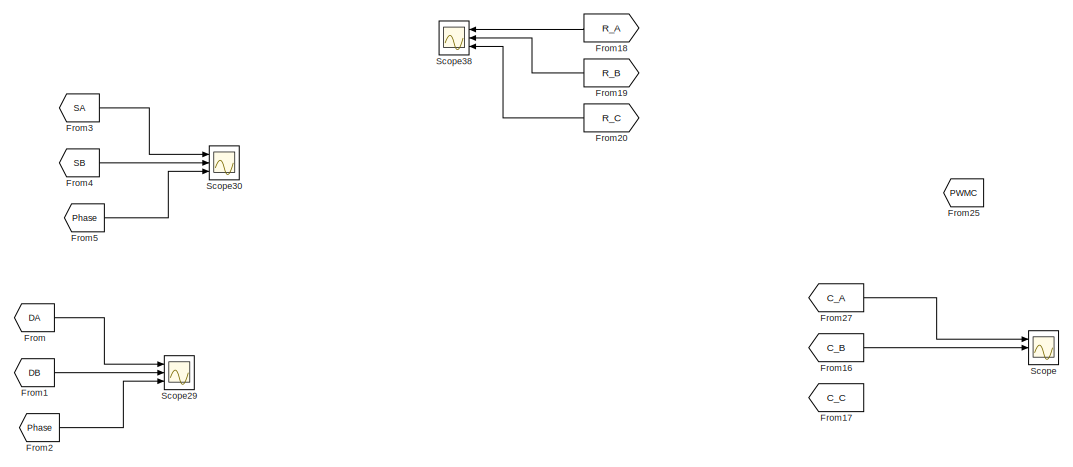
[diagram: root canvas - part 1/6, top left region]
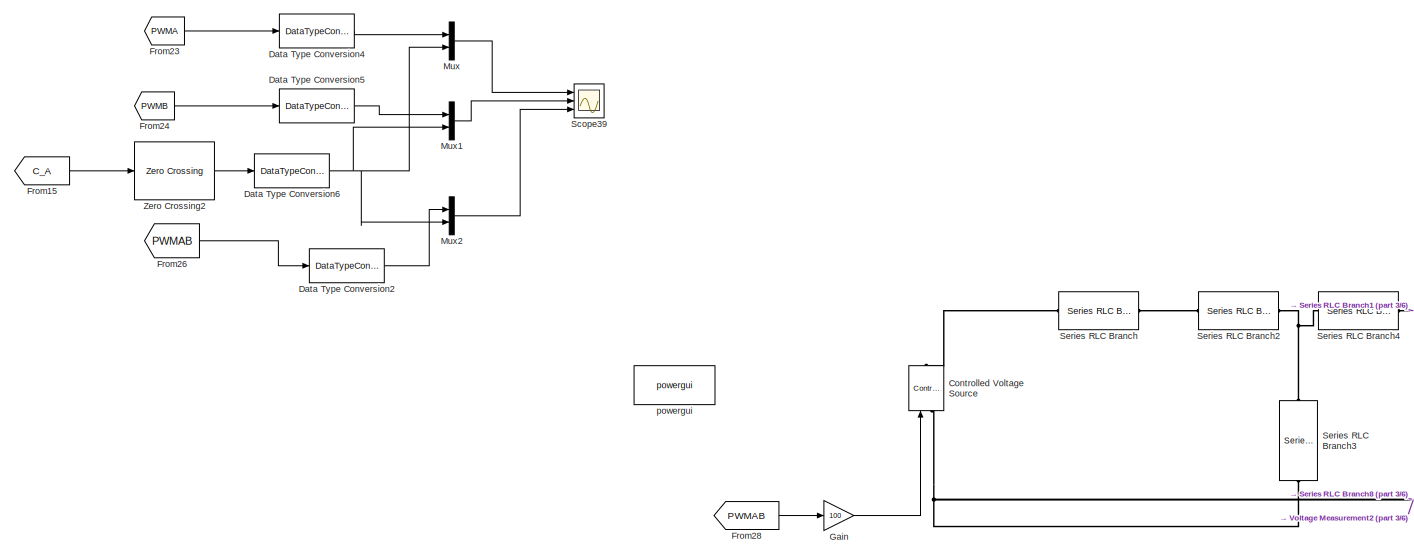
[diagram: root canvas - part 2/6, central region]
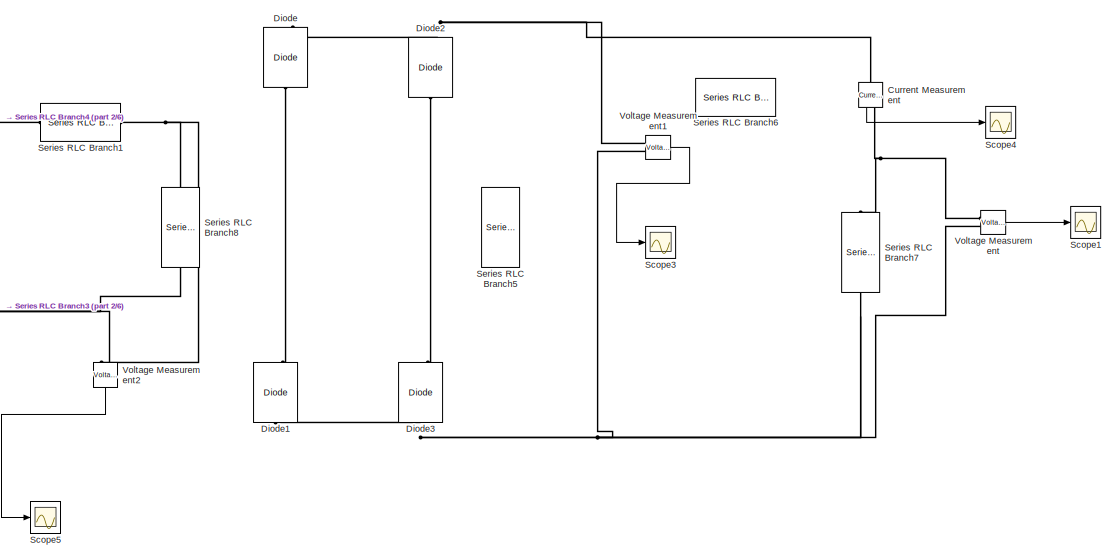
[diagram: root canvas - part 3/6, middle right region]
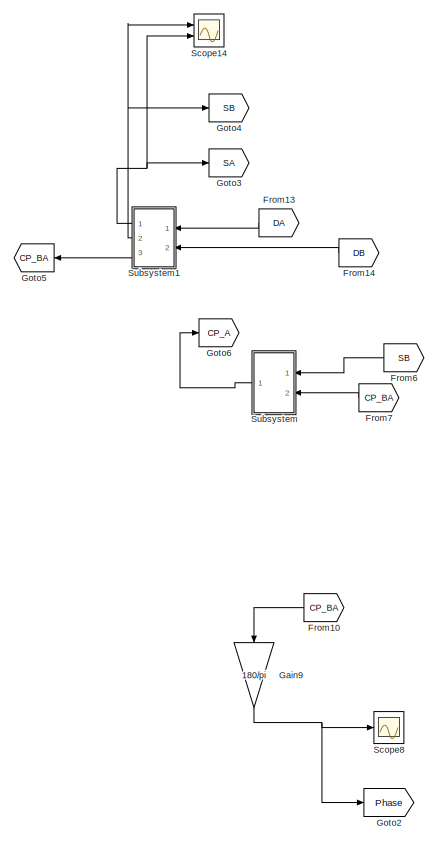
[diagram: root canvas - part 4/6, middle left region]
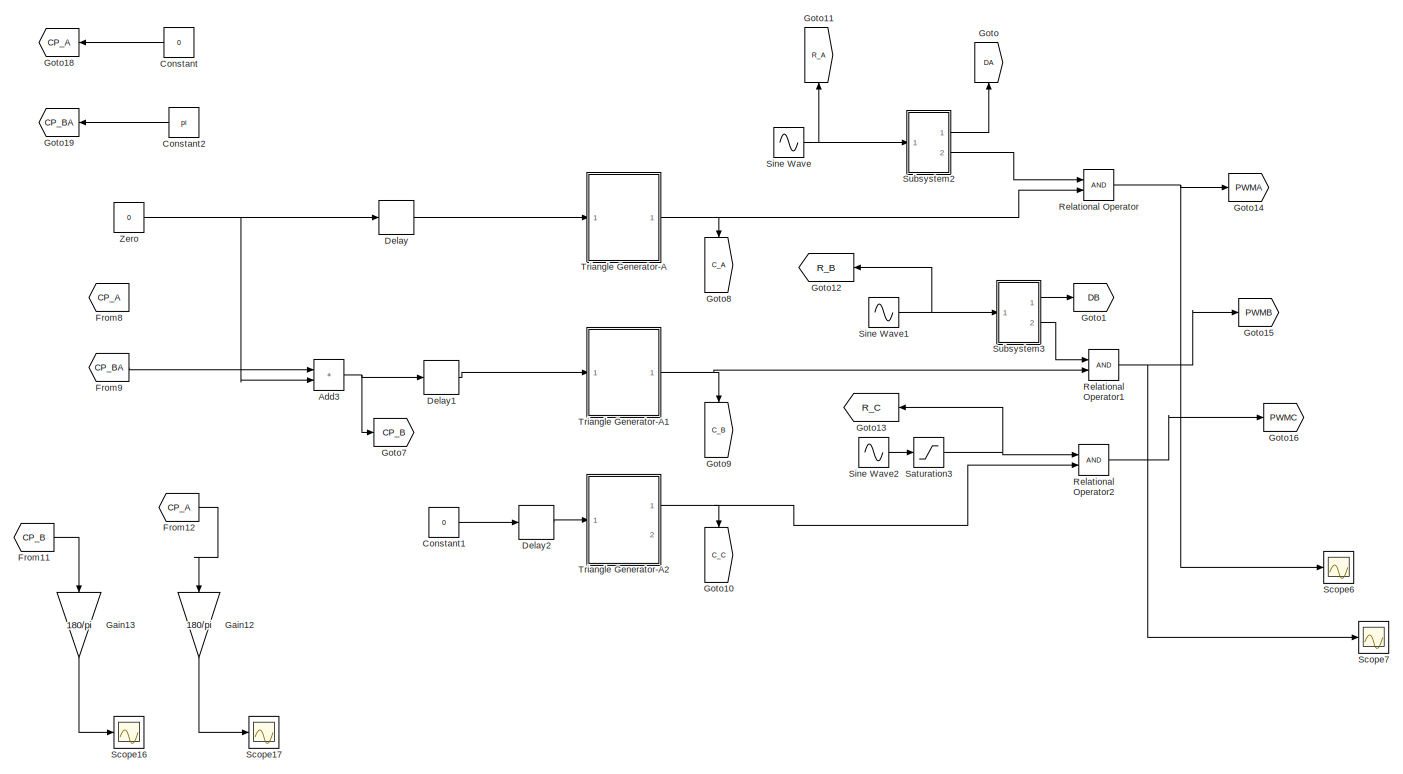
[diagram: root canvas - part 5/6, bottom left region]
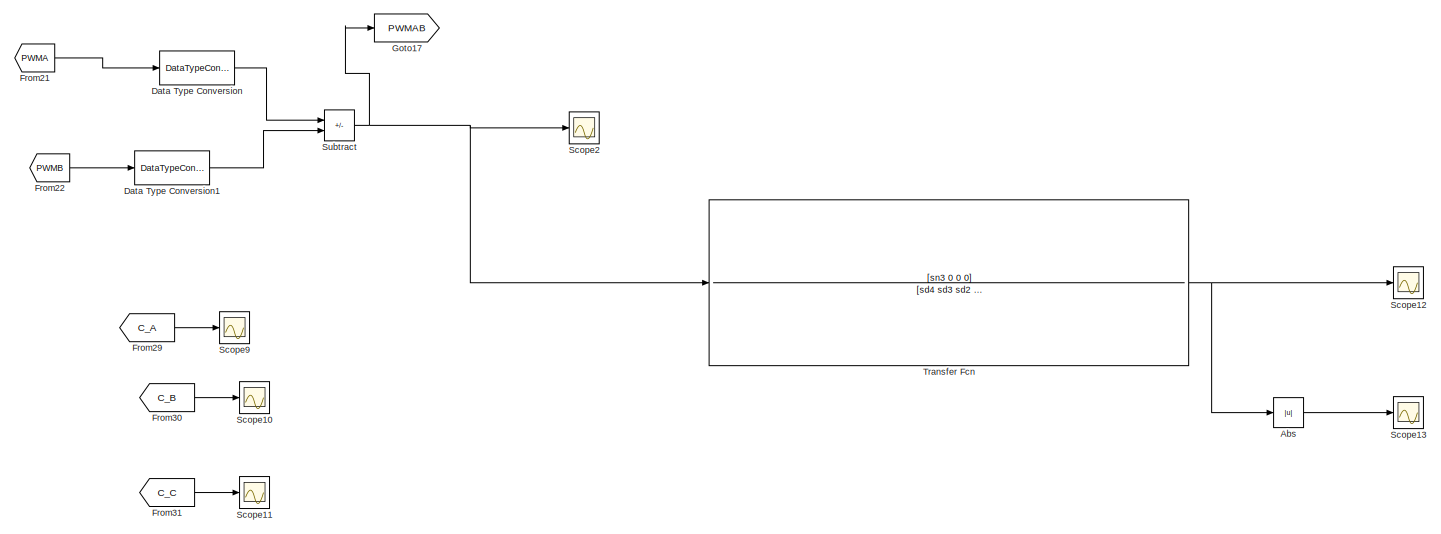
[diagram: root canvas - part 6/6, bottom center region]
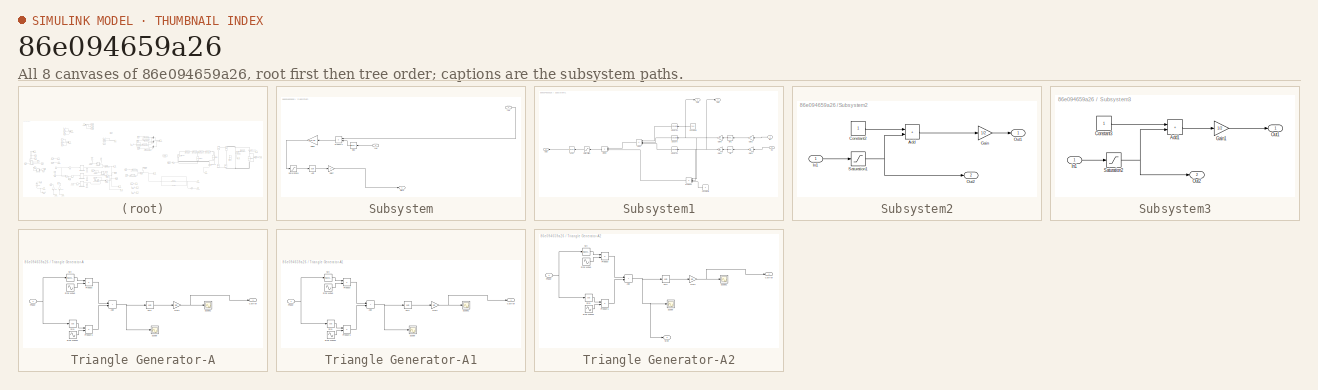
[diagram: thumbnail index - all 8 canvases of the model, root first then tree order]
MODEL slx_86e094659a26
KIND model
CONFIG AbsTol = auto
CONFIG EnableMultiTasking = off
CONFIG FixedStep = 1e-7
CONFIG InitFcn = fsw=50e3;\nma=0.85;\nffund=100;\n\nL1=63e-6;\nL2=50e-6;\nM=18e-6;\nC1=12.2e-9;\nC2=14.5e-9;\nR=20;\n\nsn3=C1*C2*M*R;\nsd4=C1*C2*L1*L2+C1*C2*L1*M+C1*C2*L2*M;\nsd3= C1*C2*L1*R+ C1*C2*M*R;\nsd2= C1*L1+C2*L2+C1*M+C2*M;\nsd1=C2*R;\nsd0=1;\n
CONFIG MaxStep = 1e-7
CONFIG MinStep = auto
CONFIG RelTol = 1e-6
CONFIG SampleTimeConstraint = Unconstrained
CONFIG SolverName = FixedStepAuto
CONFIG StartTime = 0.0
CONFIG StopTime = 0.05
BLOCK [Abs] Abs
  SaturateOnIntegerOverflow = off
BLOCK [Sum] Add3
  IconShape = rectangular
  Ports = [2, 1]
BLOCK [Constant] Constant
  Commented = on
  NameLocation = top
  Value = 0
BLOCK [Constant] Constant1
  Value = 0
BLOCK [Constant] Constant2
  Commented = on
  NameLocation = top
  Value = pi
BLOCK [Reference] Controlled Voltage Source  REF=spsControlledVoltageSourceLib/Controlled Voltage Source
  Ports = [1, 0, 0, 0, 0, 1, 1]
  SourceBlock = spsControlledVoltageSourceLib/Controlled Voltage Source
  SourceProductBaseCode = PS
  SourceType = Controlled Voltage Source
BLOCK [Reference] Current Measurement  REF=spsCurrentMeasurementLib/Current Measurement
  NameLocation = left
  Ports = [0, 1, 0, 0, 0, 1, 1]
  SourceBlock = spsCurrentMeasurementLib/Current Measurement
  SourceProductBaseCode = PS
  SourceType = Current Measurement
  UserDataPersistent = on
BLOCK [DataTypeConversion] Data Type Conversion
  RndMeth = Floor
  SaturateOnIntegerOverflow = off
BLOCK [DataTypeConversion] Data Type Conversion1
  RndMeth = Floor
  SaturateOnIntegerOverflow = off
BLOCK [DataTypeConversion] Data Type Conversion2
  RndMeth = Floor
  SaturateOnIntegerOverflow = off
BLOCK [DataTypeConversion] Data Type Conversion4
  RndMeth = Floor
  SaturateOnIntegerOverflow = off
BLOCK [DataTypeConversion] Data Type Conversion5
  RndMeth = Floor
  SaturateOnIntegerOverflow = off
BLOCK [DataTypeConversion] Data Type Conversion6
  RndMeth = Floor
  SaturateOnIntegerOverflow = off
BLOCK [Delay] Delay
  DelayLength = 1
  InputPortMap = u0
  Ports = [1, 1]
BLOCK [Delay] Delay1
  DelayLength = 1
  InputPortMap = u0
  Ports = [1, 1]
BLOCK [Delay] Delay2
  DelayLength = 1
  InputPortMap = u0
  Ports = [1, 1]
BLOCK [Reference] Diode  REF=spsDiodeLib/Diode
  NameLocation = right
  Ports = [0, 1, 0, 0, 0, 1, 1]
  SourceBlock = spsDiodeLib/Diode
  SourceProductBaseCode = PS
  SourceType = Diode
BLOCK [Reference] Diode1  REF=spsDiodeLib/Diode
  NameLocation = right
  Ports = [0, 1, 0, 0, 0, 1, 1]
  SourceBlock = spsDiodeLib/Diode
  SourceProductBaseCode = PS
  SourceType = Diode
BLOCK [Reference] Diode2  REF=spsDiodeLib/Diode
  NameLocation = right
  Ports = [0, 1, 0, 0, 0, 1, 1]
  SourceBlock = spsDiodeLib/Diode
  SourceProductBaseCode = PS
  SourceType = Diode
BLOCK [Reference] Diode3  REF=spsDiodeLib/Diode
  NameLocation = right
  Ports = [0, 1, 0, 0, 0, 1, 1]
  SourceBlock = spsDiodeLib/Diode
  SourceProductBaseCode = PS
  SourceType = Diode
BLOCK [From] From
  GotoTag = DA
BLOCK [From] From1
  GotoTag = DB
BLOCK [From] From10
  GotoTag = CP_BA
  NameLocation = top
BLOCK [From] From11
  GotoTag = CP_B
BLOCK [From] From12
  GotoTag = CP_A
BLOCK [From] From13
  GotoTag = DA
  NameLocation = top
BLOCK [From] From14
  GotoTag = DB
  NameLocation = top
BLOCK [From] From15
  GotoTag = C_A
BLOCK [From] From16
  GotoTag = C_B
BLOCK [From] From17
  GotoTag = C_C
BLOCK [From] From18
  GotoTag = R_A
  NameLocation = top
BLOCK [From] From19
  GotoTag = R_B
BLOCK [From] From2
  GotoTag = Phase
BLOCK [From] From20
  GotoTag = R_C
BLOCK [From] From21
  GotoTag = PWMA
BLOCK [From] From22
  GotoTag = PWMB
BLOCK [From] From23
  GotoTag = PWMA
BLOCK [From] From24
  GotoTag = PWMB
BLOCK [From] From25
  GotoTag = PWMC
BLOCK [From] From26
  GotoTag = PWMAB
BLOCK [From] From27
  GotoTag = C_A
BLOCK [From] From28
  GotoTag = PWMAB
BLOCK [From] From29
  GotoTag = C_A
BLOCK [From] From3
  GotoTag = SA
BLOCK [From] From30
  GotoTag = C_B
BLOCK [From] From31
  GotoTag = C_C
BLOCK [From] From4
  GotoTag = SB
BLOCK [From] From5
  GotoTag = Phase
BLOCK [From] From6
  GotoTag = SB
  NameLocation = top
BLOCK [From] From7
  GotoTag = CP_BA
  NameLocation = top
BLOCK [From] From8
  GotoTag = CP_A
BLOCK [From] From9
  GotoTag = CP_BA
BLOCK [Gain] Gain
  Gain = 100
BLOCK [Gain] Gain12
  Gain = 180/pi
  NameLocation = left
BLOCK [Gain] Gain13
  Gain = 180/pi
  NameLocation = left
BLOCK [Gain] Gain9
  Gain = 180/pi
  NameLocation = left
BLOCK [Goto] Goto
  GotoTag = DA
  NameLocation = right
BLOCK [Goto] Goto1
  GotoTag = DB
BLOCK [Goto] Goto10
  GotoTag = C_C
  NameLocation = left
BLOCK [Goto] Goto11
  GotoTag = R_A
  NameLocation = right
BLOCK [Goto] Goto12
  GotoTag = R_B
  NameLocation = top
BLOCK [Goto] Goto13
  GotoTag = R_C
  NameLocation = top
BLOCK [Goto] Goto14
  GotoTag = PWMA
BLOCK [Goto] Goto15
  GotoTag = PWMB
BLOCK [Goto] Goto16
  GotoTag = PWMC
BLOCK [Goto] Goto17
  GotoTag = PWMAB
BLOCK [Goto] Goto18
  Commented = on
  GotoTag = CP_A
  NameLocation = top
BLOCK [Goto] Goto19
  Commented = on
  GotoTag = CP_BA
  NameLocation = top
BLOCK [Goto] Goto2
  GotoTag = Phase
BLOCK [Goto] Goto3
  GotoTag = SA
BLOCK [Goto] Goto4
  GotoTag = SB
BLOCK [Goto] Goto5
  GotoTag = CP_BA
  NameLocation = top
BLOCK [Goto] Goto6
  GotoTag = CP_A
BLOCK [Goto] Goto7
  GotoTag = CP_B
BLOCK [Goto] Goto8
  GotoTag = C_A
  NameLocation = left
BLOCK [Goto] Goto9
  GotoTag = C_B
  NameLocation = left
BLOCK [Mux] Mux
  DisplayOption = bar
  Inputs = 2
  Ports = [2, 1]
BLOCK [Mux] Mux1
  DisplayOption = bar
  Inputs = 2
  Ports = [2, 1]
BLOCK [Mux] Mux2
  DisplayOption = bar
  Inputs = 2
  Ports = [2, 1]
BLOCK [RelationalOperator] Relational Operator
  InputSameDT = off
  OutDataTypeStr = boolean
  Ports = [2, 1]
  RndMeth = Simplest
BLOCK [RelationalOperator] Relational Operator1
  InputSameDT = off
  OutDataTypeStr = boolean
  Ports = [2, 1]
  RndMeth = Simplest
BLOCK [RelationalOperator] Relational Operator2
  InputSameDT = off
  OutDataTypeStr = boolean
  Ports = [2, 1]
  RndMeth = Simplest
BLOCK [Saturate] Saturation3
  LowerLimit = -1
  UpperLimit = 1
BLOCK [Scope] Scope
  Floating = off
  NumInputPorts = 3
  Ports = [3]
  ScopeSpecificationString = Simulink.scopes.TimeScopeBlockCfg('CurrentConfiguration', extmgr.ConfigurationSet(extmgr.Configuration('Core','General UI',true),extmgr.Configuration('Core','Source UI',true),extmgr.Configuration('Sources','WiredSimulink',true,'DataLoggingVariableName','ScopeData1'),extmgr.Configuration('Visuals','Time Domain',true,'SerializedDisplays',{struct('MinYLimReal','-1.25','MaxYLimReal','1.20187','YLabelR...<+1474ch>
BLOCK [Scope] Scope1
  Floating = off
  NumInputPorts = 1
  Ports = [1]
  ScopeSpecificationString = Simulink.scopes.TimeScopeBlockCfg('CurrentConfiguration', extmgr.ConfigurationSet(extmgr.Configuration('Core','General UI',true),extmgr.Configuration('Core','Source UI',true),extmgr.Configuration('Sources','WiredSimulink',true,'DataLoggingVariableName','ScopeData2'),extmgr.Configuration('Visuals','Time Domain',true,'SerializedDisplays',{struct('MinYLimReal','-5.70914','MaxYLimReal','93.73437','YLa...<+1453ch>
BLOCK [Scope] Scope10
  Floating = off
  NumInputPorts = 1
  Ports = [1]
  ScopeSpecificationString = Simulink.scopes.TimeScopeBlockCfg('CurrentConfiguration', extmgr.ConfigurationSet(extmgr.Configuration('Core','General UI',true),extmgr.Configuration('Core','Source UI',true),extmgr.Configuration('Sources','WiredSimulink',true,'DataLoggingVariableName','CB','DataLogging',true,'DataLoggingSaveFormat','StructureWithTime'),extmgr.Configuration('Visuals','Time Domain',true,'SerializedDisplays',{struct...<+1488ch>
BLOCK [Scope] Scope11
  Floating = off
  NumInputPorts = 1
  Ports = [1]
  ScopeSpecificationString = Simulink.scopes.TimeScopeBlockCfg('CurrentConfiguration', extmgr.ConfigurationSet(extmgr.Configuration('Core','General UI',true),extmgr.Configuration('Core','Source UI',true),extmgr.Configuration('Sources','WiredSimulink',true,'DataLoggingVariableName','CC','DataLogging',true,'DataLoggingSaveFormat','StructureWithTime'),extmgr.Configuration('Visuals','Time Domain',true,'SerializedDisplays',{struct...<+1490ch>
BLOCK [Scope] Scope12
  Floating = off
  NumInputPorts = 1
  Ports = [1]
  ScopeSpecificationString = Simulink.scopes.TimeScopeBlockCfg('CurrentConfiguration', extmgr.ConfigurationSet(extmgr.Configuration('Core','General UI',true),extmgr.Configuration('Core','Source UI',true),extmgr.Configuration('Sources','WiredSimulink',true,'DataLoggingVariableName','ScopeData5','DataLogging',true,'DataLoggingSaveFormat','StructureWithTime'),extmgr.Configuration('Visuals','Time Domain',true,'SerializedDisplays'...<+1505ch>
BLOCK [Scope] Scope13
  Floating = off
  NumInputPorts = 1
  Ports = [1]
  ScopeSpecificationString = Simulink.scopes.TimeScopeBlockCfg('CurrentConfiguration', extmgr.ConfigurationSet(extmgr.Configuration('Core','General UI',true),extmgr.Configuration('Core','Source UI',true),extmgr.Configuration('Sources','WiredSimulink',true,'DataLoggingVariableName','Vrx_rec','DataLogging',true,'DataLoggingSaveFormat','StructureWithTime'),extmgr.Configuration('Visuals','Time Domain',true,'SerializedDisplays',{s...<+1493ch>
BLOCK [Scope] Scope14
  Floating = off
  NumInputPorts = 2
  Ports = [2]
  ScopeSpecificationString = Simulink.scopes.TimeScopeBlockCfg('CurrentConfiguration', extmgr.ConfigurationSet(extmgr.Configuration('Core','General UI',true),extmgr.Configuration('Core','Source UI',true),extmgr.Configuration('Sources','WiredSimulink',true,'DataLoggingVariableName','ScopeData1'),extmgr.Configuration('Visuals','Time Domain',true,'SerializedDisplays',{struct('MinYLimReal','0.08762','MaxYLimReal','0.69762','YLabe...<+1415ch>
BLOCK [Scope] Scope16
  Floating = off
  NumInputPorts = 1
  Ports = [1]
  ScopeSpecificationString = Simulink.scopes.TimeScopeBlockCfg('CurrentConfiguration', extmgr.ConfigurationSet(extmgr.Configuration('Core','General UI',true),extmgr.Configuration('Core','Source UI',true),extmgr.Configuration('Sources','WiredSimulink',true,'DataLoggingVariableName','ScopeData12'),extmgr.Configuration('Visuals','Time Domain',true,'SerializedDisplays',{struct('MinYLimReal','-19.4586','MaxYLimReal','175.12737','Y...<+1449ch>
BLOCK [Scope] Scope17
  Floating = off
  NumInputPorts = 1
  Ports = [1]
  ScopeSpecificationString = Simulink.scopes.TimeScopeBlockCfg('CurrentConfiguration', extmgr.ConfigurationSet(extmgr.Configuration('Core','General UI',true),extmgr.Configuration('Core','Source UI',true),extmgr.Configuration('Sources','WiredSimulink',true,'DataLoggingVariableName','ScopeData13'),extmgr.Configuration('Visuals','Time Domain',true,'SerializedDisplays',{struct('MinYLimReal','-11.24999','MaxYLimReal','101.24991','...<+1453ch>
BLOCK [Scope] Scope2
  Floating = off
  NumInputPorts = 1
  Ports = [1]
  ScopeSpecificationString = Simulink.scopes.TimeScopeBlockCfg('CurrentConfiguration', extmgr.ConfigurationSet(extmgr.Configuration('Core','General UI',true),extmgr.Configuration('Core','Source UI',true),extmgr.Configuration('Sources','WiredSimulink',true,'DataLoggingVariableName','VAB','DataLogging',true,'DataLoggingSaveFormat','StructureWithTime'),extmgr.Configuration('Visuals','Time Domain',true,'SerializedDisplays',{struc...<+1476ch>
BLOCK [Scope] Scope29
  Floating = off
  NumInputPorts = 3
  Ports = [3]
  ScopeSpecificationString = Simulink.scopes.TimeScopeBlockCfg('CurrentConfiguration', extmgr.ConfigurationSet(extmgr.Configuration('Core','General UI',true),extmgr.Configuration('Core','Source UI',true),extmgr.Configuration('Sources','WiredSimulink',true,'DataLoggingVariableName','ScopeData2'),extmgr.Configuration('Visuals','Time Domain',true,'SerializedDisplays',{struct('MinYLimReal','0.00000','MaxYLimReal','1.00000','YLabe...<+2802ch>
BLOCK [Scope] Scope3
  Floating = off
  NumInputPorts = 1
  Ports = [1]
  ScopeSpecificationString = Simulink.scopes.TimeScopeBlockCfg('CurrentConfiguration', extmgr.ConfigurationSet(extmgr.Configuration('Core','General UI',true),extmgr.Configuration('Core','Source UI',true),extmgr.Configuration('Sources','WiredSimulink',true,'DataLoggingVariableName','ScopeData3'),extmgr.Configuration('Visuals','Time Domain',true,'SerializedDisplays',{struct('MinYLimReal','-1.00000','MaxYLimReal','1.00000','YLab...<+1435ch>
BLOCK [Scope] Scope30
  Floating = off
  NumInputPorts = 3
  Ports = [3]
  ScopeSpecificationString = Simulink.scopes.TimeScopeBlockCfg('CurrentConfiguration', extmgr.ConfigurationSet(extmgr.Configuration('Core','General UI',true),extmgr.Configuration('Core','Source UI',true),extmgr.Configuration('Sources','WiredSimulink',true,'DataLoggingVariableName','ScopeData3'),extmgr.Configuration('Visuals','Time Domain',true,'SerializedDisplays',{struct('MinYLimReal','0.14174','MaxYLimReal','0.69161','YLabe...<+2788ch>
BLOCK [Scope] Scope38
  Floating = off
  NameLocation = top
  NumInputPorts = 3
  Ports = [3]
  ScopeSpecificationString = Simulink.scopes.TimeScopeBlockCfg('CurrentConfiguration', extmgr.ConfigurationSet(extmgr.Configuration('Core','General UI',true),extmgr.Configuration('Core','Source UI',true),extmgr.Configuration('Sources','WiredSimulink',true,'DataLoggingVariableName','ScopeData11'),extmgr.Configuration('Visuals','Time Domain',true,'SerializedDisplays',{struct('MinYLimReal','-1.125','MaxYLimReal','1.125','YLabelR...<+2780ch>
BLOCK [Scope] Scope39
  Floating = off
  NumInputPorts = 3
  Ports = [3]
  ScopeSpecificationString = Simulink.scopes.TimeScopeBlockCfg('CurrentConfiguration', extmgr.ConfigurationSet(extmgr.Configuration('Core','General UI',true),extmgr.Configuration('Core','Source UI',true),extmgr.Configuration('Sources','WiredSimulink',true,'DataLoggingVariableName','ScopeData12'),extmgr.Configuration('Visuals','Time Domain',true,'SerializedDisplays',{struct('MinYLimReal','-0.125','MaxYLimReal','1.125','YLabelR...<+2909ch>
BLOCK [Scope] Scope4
  Floating = off
  NumInputPorts = 1
  Ports = [1]
  ScopeSpecificationString = Simulink.scopes.TimeScopeBlockCfg('CurrentConfiguration', extmgr.ConfigurationSet(extmgr.Configuration('Core','General UI',true),extmgr.Configuration('Core','Source UI',true),extmgr.Configuration('Sources','WiredSimulink',true,'DataLoggingVariableName','ScopeData4'),extmgr.Configuration('Visuals','Time Domain',true,'SerializedDisplays',{struct('MinYLimReal','1.40996','MaxYLimReal','1.43345','YLabe...<+1449ch>
BLOCK [Scope] Scope5
  Floating = off
  NumInputPorts = 1
  Ports = [1]
  ScopeSpecificationString = Simulink.scopes.TimeScopeBlockCfg('CurrentConfiguration', extmgr.ConfigurationSet(extmgr.Configuration('Core','General UI',true),extmgr.Configuration('Core','Source UI',true),extmgr.Configuration('Sources','WiredSimulink',true,'DataLoggingVariableName','VRX','DataLogging',true,'DataLoggingSaveFormat','StructureWithTime'),extmgr.Configuration('Visuals','Time Domain',true,'SerializedDisplays',{struc...<+1521ch>
BLOCK [Scope] Scope6
  Floating = off
  NumInputPorts = 1
  Ports = [1]
  ScopeSpecificationString = Simulink.scopes.TimeScopeBlockCfg('CurrentConfiguration', extmgr.ConfigurationSet(extmgr.Configuration('Core','General UI',true),extmgr.Configuration('Core','Source UI',true),extmgr.Configuration('Sources','WiredSimulink',true,'DataLoggingVariableName','VA','DataLogging',true,'DataLoggingSaveFormat','StructureWithTime'),extmgr.Configuration('Visuals','Time Domain',true,'SerializedDisplays',{struct...<+1486ch>
BLOCK [Scope] Scope7
  Floating = off
  NumInputPorts = 1
  Ports = [1]
  ScopeSpecificationString = Simulink.scopes.TimeScopeBlockCfg('CurrentConfiguration', extmgr.ConfigurationSet(extmgr.Configuration('Core','General UI',true),extmgr.Configuration('Core','Source UI',true),extmgr.Configuration('Sources','WiredSimulink',true,'DataLoggingVariableName','VB','DataLogging',true,'DataLoggingSaveFormat','StructureWithTime'),extmgr.Configuration('Visuals','Time Domain',true,'SerializedDisplays',{struct...<+1487ch>
BLOCK [Scope] Scope8
  Floating = off
  NumInputPorts = 1
  Ports = [1]
  ScopeSpecificationString = Simulink.scopes.TimeScopeBlockCfg('CurrentConfiguration', extmgr.ConfigurationSet(extmgr.Configuration('Core','General UI',true),extmgr.Configuration('Core','Source UI',true),extmgr.Configuration('Sources','WiredSimulink',true,'DataLoggingVariableName','ScopeData2'),extmgr.Configuration('Visuals','Time Domain',true,'SerializedDisplays',{struct('MinYLimReal','25.49348','MaxYLimReal','104.14144','YL...<+1450ch>
BLOCK [Scope] Scope9
  Floating = off
  NumInputPorts = 1
  Ports = [1]
  ScopeSpecificationString = Simulink.scopes.TimeScopeBlockCfg('CurrentConfiguration', extmgr.ConfigurationSet(extmgr.Configuration('Core','General UI',true),extmgr.Configuration('Core','Source UI',true),extmgr.Configuration('Sources','WiredSimulink',true,'DataLoggingVariableName','CA','DataLogging',true,'DataLoggingSaveFormat','StructureWithTime'),extmgr.Configuration('Visuals','Time Domain',true,'SerializedDisplays',{struct...<+1503ch>
BLOCK [Reference] Series RLC Branch  REF=spsSeriesRLCBranchLib/Series RLC Branch
  Ports = [0, 0, 0, 0, 0, 1, 1]
  SourceBlock = spsSeriesRLCBranchLib/Series RLC Branch
  SourceProductBaseCode = PS
  SourceType = Series RLC Branch
BLOCK [Reference] Series RLC Branch1  REF=spsSeriesRLCBranchLib/Series RLC Branch
  Ports = [0, 0, 0, 0, 0, 1, 1]
  SourceBlock = spsSeriesRLCBranchLib/Series RLC Branch
  SourceProductBaseCode = PS
  SourceType = Series RLC Branch
BLOCK [Reference] Series RLC Branch2  REF=spsSeriesRLCBranchLib/Series RLC Branch
  Ports = [0, 0, 0, 0, 0, 1, 1]
  SourceBlock = spsSeriesRLCBranchLib/Series RLC Branch
  SourceProductBaseCode = PS
  SourceType = Series RLC Branch
BLOCK [Reference] Series RLC Branch3  REF=spsSeriesRLCBranchLib/Series RLC Branch
  NameLocation = left
  Ports = [0, 0, 0, 0, 0, 1, 1]
  SourceBlock = spsSeriesRLCBranchLib/Series RLC Branch
  SourceProductBaseCode = PS
  SourceType = Series RLC Branch
BLOCK [Reference] Series RLC Branch4  REF=spsSeriesRLCBranchLib/Series RLC Branch
  Ports = [0, 0, 0, 0, 0, 1, 1]
  SourceBlock = spsSeriesRLCBranchLib/Series RLC Branch
  SourceProductBaseCode = PS
  SourceType = Series RLC Branch
BLOCK [Reference] Series RLC Branch5  REF=spsSeriesRLCBranchLib/Series RLC Branch
  NameLocation = left
  Ports = [0, 0, 0, 0, 0, 1, 1]
  SourceBlock = spsSeriesRLCBranchLib/Series RLC Branch
  SourceProductBaseCode = PS
  SourceType = Series RLC Branch
BLOCK [Reference] Series RLC Branch6  REF=spsSeriesRLCBranchLib/Series RLC Branch
  NameLocation = top
  Ports = [0, 0, 0, 0, 0, 1, 1]
  SourceBlock = spsSeriesRLCBranchLib/Series RLC Branch
  SourceProductBaseCode = PS
  SourceType = Series RLC Branch
BLOCK [Reference] Series RLC Branch7  REF=spsSeriesRLCBranchLib/Series RLC Branch
  NameLocation = left
  Ports = [0, 0, 0, 0, 0, 1, 1]
  SourceBlock = spsSeriesRLCBranchLib/Series RLC Branch
  SourceProductBaseCode = PS
  SourceType = Series RLC Branch
BLOCK [Reference] Series RLC Branch8  REF=spsSeriesRLCBranchLib/Series RLC Branch
  NameLocation = left
  Ports = [0, 0, 0, 0, 0, 1, 1]
  SourceBlock = spsSeriesRLCBranchLib/Series RLC Branch
  SourceProductBaseCode = PS
  SourceType = Series RLC Branch
BLOCK [Sin] Sine Wave
  Amplitude = ma
  Frequency = 2*pi*ffund
  Ports = [0, 1]
  SampleTime = 0
BLOCK [Sin] Sine Wave1
  Amplitude = ma
  Frequency = 2*pi*ffund
  Phase = 2*pi/3
  Ports = [0, 1]
  SampleTime = 0
BLOCK [Sin] Sine Wave2
  Amplitude = ma
  Frequency = 2*pi*ffund
  Phase = -2*pi/3
  Ports = [0, 1]
  SampleTime = 0
BLOCK [SubSystem] Subsystem
  NameLocation = top
  Ports = [2, 1]
  RequestExecContextInheritance = off
BLOCK [Trigonometry] Subsystem/Asin
  Operator = asin
  Ports = [1, 1]
BLOCK [Gain] Subsystem/Gain6
  Gain = 1/0.44
  NameLocation = top
BLOCK [Gain] Subsystem/Gain7
BLOCK [Inport] Subsystem/In1
BLOCK [Inport] Subsystem/In2
  Port = 2
BLOCK [Outport] Subsystem/Out1
BLOCK [Product] Subsystem/Product1
  NameLocation = top
  Ports = [2, 1]
BLOCK [Saturate] Subsystem/Saturation4
  LowerLimit = -1
  UpperLimit = 1
BLOCK [Trigonometry] Subsystem/Sin2
  NameLocation = top
  Ports = [1, 1]
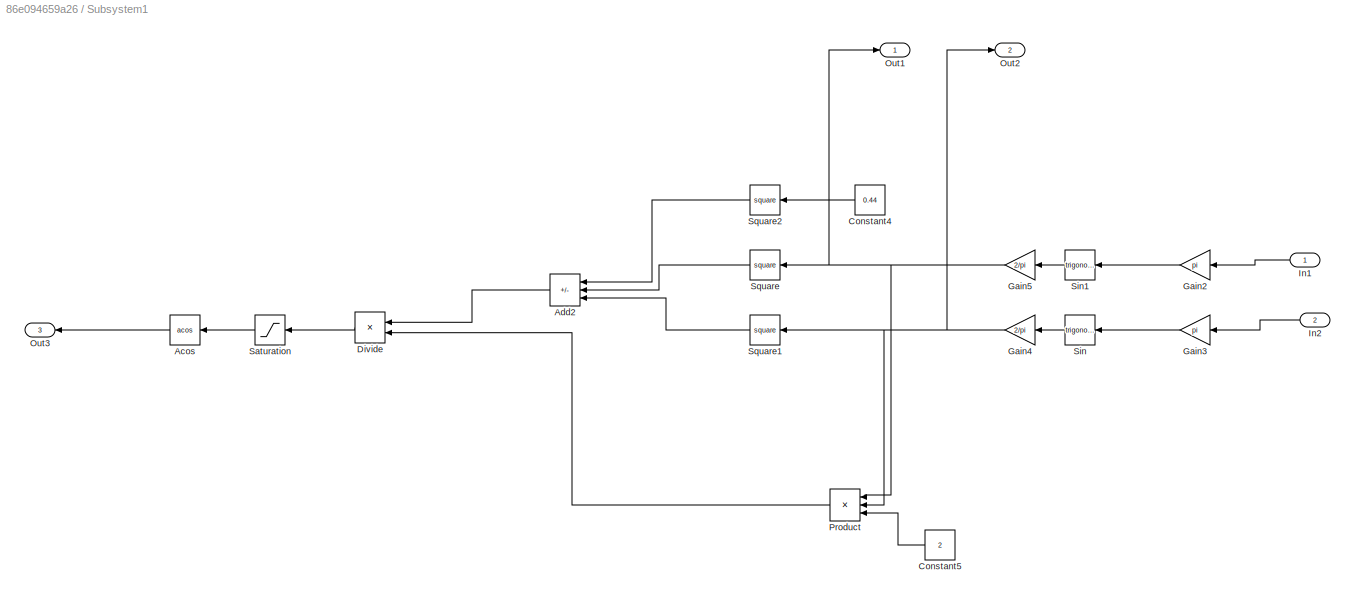
BLOCK [SubSystem] Subsystem1
  NameLocation = top
  Ports = [2, 3]
  RequestExecContextInheritance = off
BLOCK [Trigonometry] Subsystem1/Acos
  NameLocation = top
  Operator = acos
  Ports = [1, 1]
BLOCK [Sum] Subsystem1/Add2
  IconShape = rectangular
  Inputs = -++
  NameLocation = top
  Ports = [3, 1]
BLOCK [Constant] Subsystem1/Constant4
  NameLocation = top
  Value = 0.44
BLOCK [Constant] Subsystem1/Constant5
  NameLocation = top
  Value = 2
BLOCK [Product] Subsystem1/Divide
  Inputs = */
  NameLocation = top
  Ports = [2, 1]
BLOCK [Gain] Subsystem1/Gain2
  Gain = pi
  NameLocation = top
BLOCK [Gain] Subsystem1/Gain3
  Gain = pi
  NameLocation = top
BLOCK [Gain] Subsystem1/Gain4
  Gain = 2/pi
  NameLocation = top
BLOCK [Gain] Subsystem1/Gain5
  Gain = 2/pi
  NameLocation = top
BLOCK [Inport] Subsystem1/In1
BLOCK [Inport] Subsystem1/In2
  Port = 2
BLOCK [Outport] Subsystem1/Out1
BLOCK [Outport] Subsystem1/Out2
  Port = 2
BLOCK [Outport] Subsystem1/Out3
  Port = 3
BLOCK [Product] Subsystem1/Product
  Inputs = 3
  NameLocation = top
  Ports = [3, 1]
BLOCK [Saturate] Subsystem1/Saturation
  LowerLimit = -1
  NameLocation = top
  UpperLimit = 1
BLOCK [Trigonometry] Subsystem1/Sin
  NameLocation = top
  Ports = [1, 1]
BLOCK [Trigonometry] Subsystem1/Sin1
  NameLocation = top
  Ports = [1, 1]
BLOCK [Math] Subsystem1/Square
  NameLocation = top
  Operator = square
  Ports = [1, 1]
BLOCK [Math] Subsystem1/Square1
  NameLocation = top
  Operator = square
  Ports = [1, 1]
BLOCK [Math] Subsystem1/Square2
  NameLocation = top
  Operator = square
  Ports = [1, 1]
BLOCK [SubSystem] Subsystem2
  Ports = [1, 2]
  RequestExecContextInheritance = off
BLOCK [Sum] Subsystem2/Add
  IconShape = rectangular
  Ports = [2, 1]
BLOCK [Constant] Subsystem2/Constant2
BLOCK [Gain] Subsystem2/Gain
  Gain = 1/2
BLOCK [Inport] Subsystem2/In1
BLOCK [Outport] Subsystem2/Out1
BLOCK [Outport] Subsystem2/Out2
  Port = 2
BLOCK [Saturate] Subsystem2/Saturation1
  LowerLimit = -1
  UpperLimit = 1
BLOCK [SubSystem] Subsystem3
  Ports = [1, 2]
  RequestExecContextInheritance = off
BLOCK [Sum] Subsystem3/Add1
  IconShape = rectangular
  Ports = [2, 1]
BLOCK [Constant] Subsystem3/Constant3
BLOCK [Gain] Subsystem3/Gain1
  Gain = 1/2
BLOCK [Inport] Subsystem3/In1
BLOCK [Outport] Subsystem3/Out1
BLOCK [Outport] Subsystem3/Out2
  Port = 2
BLOCK [Saturate] Subsystem3/Saturation2
  LowerLimit = -1
  UpperLimit = 1
BLOCK [Sum] Subtract
  IconShape = rectangular
  Inputs = +-
  Ports = [2, 1]
BLOCK [TransferFcn] Transfer Fcn
  Denominator = [sd4 sd3 sd2 sd1 sd0]
  Numerator = [sn3 0 0 0]
BLOCK [SubSystem] Triangle Generator-A
  Ports = [1, 1]
  RequestExecContextInheritance = off
BLOCK [Sum] Triangle Generator-A/Add
  IconShape = rectangular
  Ports = [2, 1]
BLOCK [Trigonometry] Triangle Generator-A/Asin
  Operator = asin
  Ports = [1, 1]
BLOCK [Outport] Triangle Generator-A/Carrier
BLOCK [Gain] Triangle Generator-A/Gain
  Gain = 2/pi
BLOCK [Inport] Triangle Generator-A/Phase
BLOCK [Product] Triangle Generator-A/Product
  Ports = [2, 1]
BLOCK [Product] Triangle Generator-A/Product1
  Ports = [2, 1]
BLOCK [Scope] Triangle Generator-A/Scope
  Floating = off
  NumInputPorts = 1
  Ports = [1]
  ScopeSpecificationString = Simulink.scopes.TimeScopeBlockCfg('CurrentConfiguration', extmgr.ConfigurationSet(extmgr.Configuration('Core','General UI',true),extmgr.Configuration('Core','Source UI',true),extmgr.Configuration('Sources','WiredSimulink',true),extmgr.Configuration('Visuals','Time Domain',true,'SerializedDisplays',{struct('MinYLimReal','-1.25','MaxYLimReal','1.08265','YLabelReal','','MinYLimMag','0.00000','MaxYLim...<+1360ch>
BLOCK [Scope] Triangle Generator-A/Scope1
  Floating = off
  NumInputPorts = 1
  Ports = [1]
  ScopeSpecificationString = Simulink.scopes.TimeScopeBlockCfg('CurrentConfiguration', extmgr.ConfigurationSet(extmgr.Configuration('Core','General UI',true),extmgr.Configuration('Core','Source UI',true),extmgr.Configuration('Sources','WiredSimulink',true,'DataLoggingVariableName','ScopeData1'),extmgr.Configuration('Visuals','Time Domain',true,'SerializedDisplays',{struct('MinYLimReal','-0.96344','MaxYLimReal','1.21757','YLab...<+1436ch>
BLOCK [Trigonometry] Triangle Generator-A/Sin
  Ports = [1, 1]
BLOCK [Trigonometry] Triangle Generator-A/Sin1
  Operator = cos
  Ports = [1, 1]
BLOCK [Sin] Triangle Generator-A/Sine Wave
  Frequency = 2*pi*fsw
  Ports = [0, 1]
  SampleTime = 0
BLOCK [Sin] Triangle Generator-A/Sine Wave1
  Frequency = 2*pi*fsw
  Phase = -pi/2
  Ports = [0, 1]
  SampleTime = 0
BLOCK [SubSystem] Triangle Generator-A1
  Ports = [1, 1]
  RequestExecContextInheritance = off
BLOCK [Sum] Triangle Generator-A1/Add
  IconShape = rectangular
  Ports = [2, 1]
BLOCK [Trigonometry] Triangle Generator-A1/Asin
  Operator = asin
  Ports = [1, 1]
BLOCK [Outport] Triangle Generator-A1/Carrier
BLOCK [Gain] Triangle Generator-A1/Gain
  Gain = 2/pi
BLOCK [Inport] Triangle Generator-A1/Phase
BLOCK [Product] Triangle Generator-A1/Product
  Ports = [2, 1]
BLOCK [Product] Triangle Generator-A1/Product1
  Ports = [2, 1]
BLOCK [Scope] Triangle Generator-A1/Scope
  Floating = off
  NumInputPorts = 1
  Ports = [1]
  ScopeSpecificationString = Simulink.scopes.TimeScopeBlockCfg('CurrentConfiguration', extmgr.ConfigurationSet(extmgr.Configuration('Core','General UI',true),extmgr.Configuration('Core','Source UI',true),extmgr.Configuration('Sources','WiredSimulink',true),extmgr.Configuration('Visuals','Time Domain',true,'SerializedDisplays',{struct('MinYLimReal','-1.76777','MaxYLimReal','1.76777','YLabelReal','','MinYLimMag','0.00000','MaxY...<+1372ch>
BLOCK [Scope] Triangle Generator-A1/Scope1
  Floating = off
  NumInputPorts = 1
  Ports = [1]
  ScopeSpecificationString = Simulink.scopes.TimeScopeBlockCfg('CurrentConfiguration', extmgr.ConfigurationSet(extmgr.Configuration('Core','General UI',true),extmgr.Configuration('Core','Source UI',true),extmgr.Configuration('Sources','WiredSimulink',true,'DataLoggingVariableName','ScopeData1'),extmgr.Configuration('Visuals','Time Domain',true,'SerializedDisplays',{struct('MinYLimReal','-1.9635','MaxYLimReal','1.9635','YLabel...<+1406ch>
BLOCK [Trigonometry] Triangle Generator-A1/Sin
  Ports = [1, 1]
BLOCK [Trigonometry] Triangle Generator-A1/Sin1
  Operator = cos
  Ports = [1, 1]
BLOCK [Sin] Triangle Generator-A1/Sine Wave
  Frequency = 2*pi*fsw
  Ports = [0, 1]
  SampleTime = 0
BLOCK [Sin] Triangle Generator-A1/Sine Wave1
  Frequency = 2*pi*fsw
  Phase = -pi/2
  Ports = [0, 1]
  SampleTime = 0
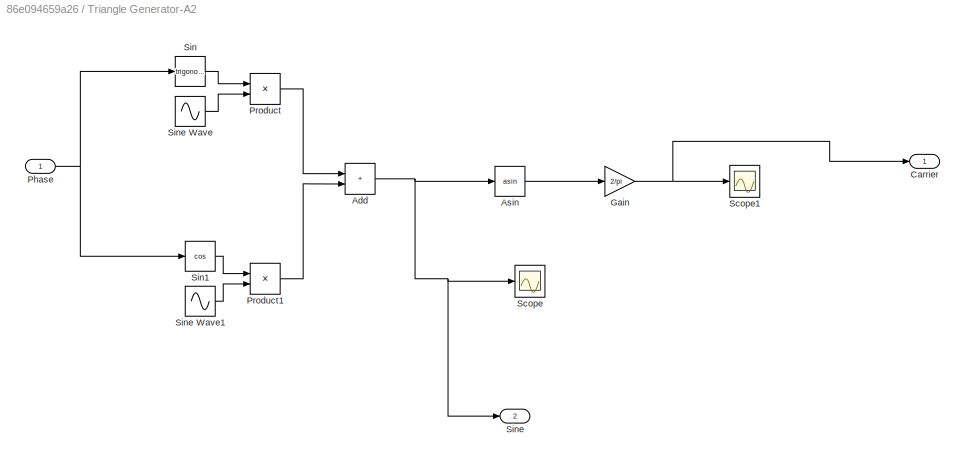
BLOCK [SubSystem] Triangle Generator-A2
  Ports = [1, 2]
  RequestExecContextInheritance = off
BLOCK [Sum] Triangle Generator-A2/Add
  IconShape = rectangular
  Ports = [2, 1]
BLOCK [Trigonometry] Triangle Generator-A2/Asin
  Operator = asin
  Ports = [1, 1]
BLOCK [Outport] Triangle Generator-A2/Carrier
BLOCK [Gain] Triangle Generator-A2/Gain
  Gain = 2/pi
BLOCK [Inport] Triangle Generator-A2/Phase
BLOCK [Product] Triangle Generator-A2/Product
  Ports = [2, 1]
BLOCK [Product] Triangle Generator-A2/Product1
  Ports = [2, 1]
BLOCK [Scope] Triangle Generator-A2/Scope
  Floating = off
  NumInputPorts = 1
  Ports = [1]
  ScopeSpecificationString = Simulink.scopes.TimeScopeBlockCfg('CurrentConfiguration', extmgr.ConfigurationSet(extmgr.Configuration('Core','General UI',true),extmgr.Configuration('Core','Source UI',true),extmgr.Configuration('Sources','WiredSimulink',true),extmgr.Configuration('Visuals','Time Domain',true,'SerializedDisplays',{struct('MinYLimReal','-1.25','MaxYLimReal','1.1168','YLabelReal','','MinYLimMag','0.00000','MaxYLimM...<+1358ch>
BLOCK [Scope] Triangle Generator-A2/Scope1
  Floating = off
  NumInputPorts = 1
  Ports = [1]
  ScopeSpecificationString = Simulink.scopes.TimeScopeBlockCfg('CurrentConfiguration', extmgr.ConfigurationSet(extmgr.Configuration('Core','General UI',true),extmgr.Configuration('Core','Source UI',true),extmgr.Configuration('Sources','WiredSimulink',true,'DataLoggingVariableName','ScopeData1'),extmgr.Configuration('Visuals','Time Domain',true,'SerializedDisplays',{struct('MinYLimReal','-1.43882','MaxYLimReal','1.70924','YLab...<+1412ch>
BLOCK [Trigonometry] Triangle Generator-A2/Sin
  Ports = [1, 1]
BLOCK [Trigonometry] Triangle Generator-A2/Sin1
  Operator = cos
  Ports = [1, 1]
BLOCK [Outport] Triangle Generator-A2/Sine
  Port = 2
BLOCK [Sin] Triangle Generator-A2/Sine Wave
  Frequency = 2*pi*fsw
  Ports = [0, 1]
  SampleTime = 0
BLOCK [Sin] Triangle Generator-A2/Sine Wave1
  Frequency = 2*pi*fsw
  Phase = -pi/2
  Ports = [0, 1]
  SampleTime = 0
BLOCK [Reference] Voltage Measurement  REF=spsVoltageMeasurementLib/Voltage Measurement
  Ports = [0, 1, 0, 0, 0, 2]
  SourceBlock = spsVoltageMeasurementLib/Voltage Measurement
  SourceProductBaseCode = PS
  SourceType = Voltage Measurement
  UserDataPersistent = on
BLOCK [Reference] Voltage Measurement1  REF=spsVoltageMeasurementLib/Voltage Measurement
  Ports = [0, 1, 0, 0, 0, 2]
  SourceBlock = spsVoltageMeasurementLib/Voltage Measurement
  SourceProductBaseCode = PS
  SourceType = Voltage Measurement
  UserDataPersistent = on
BLOCK [Reference] Voltage Measurement2  REF=spsVoltageMeasurementLib/Voltage Measurement
  NameLocation = left
  Ports = [0, 1, 0, 0, 0, 2]
  SourceBlock = spsVoltageMeasurementLib/Voltage Measurement
  SourceProductBaseCode = PS
  SourceType = Voltage Measurement
  UserDataPersistent = on
BLOCK [Constant] Zero
  OutDataTypeStr = Inherit: Inherit via back propagation
  Value = 0
BLOCK [Reference] Zero Crossing2  REF=dspsigops/Zero Crossing
  Ports = [1, 1]
  SourceBlock = dspsigops/Zero Crossing
  SourceProductBaseCode = DS
  SourceType = Zero Crossing
  UserDataPersistent = on
BLOCK [Reference] powergui  REF=spspowerguiLib/powergui
  Ports = []
  Priority = 1
  SourceBlock = spspowerguiLib/powergui
  SourceProductBaseCode = PS
  SourceType = PSB option menu block
LINE Abs:1 -> Scope13:1
NET Add3:1 -> Delay1:1, Goto7:1
LINE Constant1:1 -> Delay2:1
LINE Constant2:1 -> Goto19:1
LINE Constant:1 -> Goto18:1
LINE Current Measurement:1 -> Scope4:1
LINE Data Type Conversion1:1 -> Subtract:2
LINE Data Type Conversion2:1 -> Mux2:1
LINE Data Type Conversion4:1 -> Mux:1
LINE Data Type Conversion5:1 -> Mux1:1
NET Data Type Conversion6:1 -> Mux1:2, Mux2:2, Mux:2
LINE Data Type Conversion:1 -> Subtract:1
LINE Delay1:1 -> Triangle Generator-A1:1
LINE Delay2:1 -> Triangle Generator-A2:1
LINE Delay:1 -> Triangle Generator-A:1
LINE From10:1 -> Gain9:1
LINE From11:1 -> Gain13:1
LINE From12:1 -> Gain12:1
LINE From13:1 -> Subsystem1:1
LINE From14:1 -> Subsystem1:2
LINE From15:1 -> Zero Crossing2:1
LINE From16:1 -> Scope:2
LINE From18:1 -> Scope38:1
LINE From19:1 -> Scope38:2
LINE From1:1 -> Scope29:2
LINE From20:1 -> Scope38:3
LINE From21:1 -> Data Type Conversion:1
LINE From22:1 -> Data Type Conversion1:1
LINE From23:1 -> Data Type Conversion4:1
LINE From24:1 -> Data Type Conversion5:1
LINE From26:1 -> Data Type Conversion2:1
LINE From27:1 -> Scope:1
LINE From28:1 -> Gain:1
LINE From29:1 -> Scope9:1
LINE From2:1 -> Scope29:3
LINE From30:1 -> Scope10:1
LINE From31:1 -> Scope11:1
LINE From3:1 -> Scope30:1
LINE From4:1 -> Scope30:2
LINE From5:1 -> Scope30:3
LINE From6:1 -> Subsystem:1
LINE From7:1 -> Subsystem:2
LINE From9:1 -> Add3:1
LINE From:1 -> Scope29:1
LINE Gain12:1 -> Scope17:1
LINE Gain13:1 -> Scope16:1
NET Gain9:1 -> Goto2:1, Scope8:1
LINE Gain:1 -> Controlled Voltage Source:1
LINE Mux1:1 -> Scope39:2
LINE Mux2:1 -> Scope39:3
LINE Mux:1 -> Scope39:1
NET Relational Operator1:1 -> Goto15:1, Scope7:1
LINE Relational Operator2:1 -> Goto16:1
NET Relational Operator:1 -> Goto14:1, Scope6:1
NET Saturation3:1 -> Goto13:1, Relational Operator2:1
NET Sine Wave1:1 -> Goto12:1, Subsystem3:1
LINE Sine Wave2:1 -> Saturation3:1
NET Sine Wave:1 -> Goto11:1, Subsystem2:1
LINE Subsystem/Asin:1 -> Subsystem/Gain7:1
LINE Subsystem/Gain6:1 -> Subsystem/Saturation4:1
LINE Subsystem/Gain7:1 -> Subsystem/Out1:1
LINE Subsystem/In1:1 -> Subsystem/Product1:1
LINE Subsystem/In2:1 -> Subsystem/Sin2:1
LINE Subsystem/Product1:1 -> Subsystem/Gain6:1
LINE Subsystem/Saturation4:1 -> Subsystem/Asin:1
LINE Subsystem/Sin2:1 -> Subsystem/Product1:2
LINE Subsystem1/Acos:1 -> Subsystem1/Out3:1
LINE Subsystem1/Add2:1 -> Subsystem1/Divide:1
LINE Subsystem1/Constant4:1 -> Subsystem1/Square2:1
LINE Subsystem1/Constant5:1 -> Subsystem1/Product:3
LINE Subsystem1/Divide:1 -> Subsystem1/Saturation:1
LINE Subsystem1/Gain2:1 -> Subsystem1/Sin1:1
LINE Subsystem1/Gain3:1 -> Subsystem1/Sin:1
NET Subsystem1/Gain4:1 -> Subsystem1/Out2:1, Subsystem1/Product:2, Subsystem1/Square1:1
NET Subsystem1/Gain5:1 -> Subsystem1/Out1:1, Subsystem1/Product:1, Subsystem1/Square:1
LINE Subsystem1/In1:1 -> Subsystem1/Gain2:1
LINE Subsystem1/In2:1 -> Subsystem1/Gain3:1
LINE Subsystem1/Product:1 -> Subsystem1/Divide:2
LINE Subsystem1/Saturation:1 -> Subsystem1/Acos:1
LINE Subsystem1/Sin1:1 -> Subsystem1/Gain5:1
LINE Subsystem1/Sin:1 -> Subsystem1/Gain4:1
LINE Subsystem1/Square1:1 -> Subsystem1/Add2:3
LINE Subsystem1/Square2:1 -> Subsystem1/Add2:1
LINE Subsystem1/Square:1 -> Subsystem1/Add2:2
NET Subsystem1:1 -> Goto3:1, Scope14:2
NET Subsystem1:2 -> Goto4:1, Scope14:1
LINE Subsystem1:3 -> Goto5:1
LINE Subsystem2/Add:1 -> Subsystem2/Gain:1
LINE Subsystem2/Constant2:1 -> Subsystem2/Add:1
LINE Subsystem2/Gain:1 -> Subsystem2/Out1:1
LINE Subsystem2/In1:1 -> Subsystem2/Saturation1:1
NET Subsystem2/Saturation1:1 -> Subsystem2/Add:2, Subsystem2/Out2:1
LINE Subsystem2:1 -> Goto:1
LINE Subsystem2:2 -> Relational Operator:1
LINE Subsystem3/Add1:1 -> Subsystem3/Gain1:1
LINE Subsystem3/Constant3:1 -> Subsystem3/Add1:1
LINE Subsystem3/Gain1:1 -> Subsystem3/Out1:1
LINE Subsystem3/In1:1 -> Subsystem3/Saturation2:1
NET Subsystem3/Saturation2:1 -> Subsystem3/Add1:2, Subsystem3/Out2:1
LINE Subsystem3:1 -> Goto1:1
LINE Subsystem3:2 -> Relational Operator1:1
LINE Subsystem:1 -> Goto6:1
NET Subtract:1 -> Goto17:1, Scope2:1, Transfer Fcn:1
NET Transfer Fcn:1 -> Abs:1, Scope12:1
NET Triangle Generator-A/Add:1 -> Triangle Generator-A/Asin:1, Triangle Generator-A/Scope:1
LINE Triangle Generator-A/Asin:1 -> Triangle Generator-A/Gain:1
NET Triangle Generator-A/Gain:1 -> Triangle Generator-A/Carrier:1, Triangle Generator-A/Scope1:1
NET Triangle Generator-A/Phase:1 -> Triangle Generator-A/Sin1:1, Triangle Generator-A/Sin:1
LINE Triangle Generator-A/Product1:1 -> Triangle Generator-A/Add:2
LINE Triangle Generator-A/Product:1 -> Triangle Generator-A/Add:1
LINE Triangle Generator-A/Sin1:1 -> Triangle Generator-A/Product1:1
LINE Triangle Generator-A/Sin:1 -> Triangle Generator-A/Product:1
LINE Triangle Generator-A/Sine Wave1:1 -> Triangle Generator-A/Product1:2
LINE Triangle Generator-A/Sine Wave:1 -> Triangle Generator-A/Product:2
NET Triangle Generator-A1/Add:1 -> Triangle Generator-A1/Asin:1, Triangle Generator-A1/Scope:1
LINE Triangle Generator-A1/Asin:1 -> Triangle Generator-A1/Gain:1
NET Triangle Generator-A1/Gain:1 -> Triangle Generator-A1/Carrier:1, Triangle Generator-A1/Scope1:1
NET Triangle Generator-A1/Phase:1 -> Triangle Generator-A1/Sin1:1, Triangle Generator-A1/Sin:1
LINE Triangle Generator-A1/Product1:1 -> Triangle Generator-A1/Add:2
LINE Triangle Generator-A1/Product:1 -> Triangle Generator-A1/Add:1
LINE Triangle Generator-A1/Sin1:1 -> Triangle Generator-A1/Product1:1
LINE Triangle Generator-A1/Sin:1 -> Triangle Generator-A1/Product:1
LINE Triangle Generator-A1/Sine Wave1:1 -> Triangle Generator-A1/Product1:2
LINE Triangle Generator-A1/Sine Wave:1 -> Triangle Generator-A1/Product:2
NET Triangle Generator-A1:1 -> Goto9:1, Relational Operator1:2
NET Triangle Generator-A2/Add:1 -> Triangle Generator-A2/Asin:1, Triangle Generator-A2/Scope:1, Triangle Generator-A2/Sine:1
LINE Triangle Generator-A2/Asin:1 -> Triangle Generator-A2/Gain:1
NET Triangle Generator-A2/Gain:1 -> Triangle Generator-A2/Carrier:1, Triangle Generator-A2/Scope1:1
NET Triangle Generator-A2/Phase:1 -> Triangle Generator-A2/Sin1:1, Triangle Generator-A2/Sin:1
LINE Triangle Generator-A2/Product1:1 -> Triangle Generator-A2/Add:2
LINE Triangle Generator-A2/Product:1 -> Triangle Generator-A2/Add:1
LINE Triangle Generator-A2/Sin1:1 -> Triangle Generator-A2/Product1:1
LINE Triangle Generator-A2/Sin:1 -> Triangle Generator-A2/Product:1
LINE Triangle Generator-A2/Sine Wave1:1 -> Triangle Generator-A2/Product1:2
LINE Triangle Generator-A2/Sine Wave:1 -> Triangle Generator-A2/Product:2
NET Triangle Generator-A2:1 -> Goto10:1, Relational Operator2:2
NET Triangle Generator-A:1 -> Goto8:1, Relational Operator:2
LINE Voltage Measurement1:1 -> Scope3:1
LINE Voltage Measurement2:1 -> Scope5:1
LINE Voltage Measurement:1 -> Scope1:1
LINE Zero Crossing2:1 -> Data Type Conversion6:1
NET Zero:1 -> Add3:2, Delay:1
PNET net1: Controlled Voltage Source:LConn1 -- Series RLC Branch3:RConn1 -- Series RLC Branch8:RConn1 -- Voltage Measurement2:LConn2
PLINE Controlled Voltage Source:RConn1 -- Series RLC Branch:LConn1
PNET net2: Current Measurement:LConn1 -- Diode2:RConn1 -- Diode:RConn1 -- Voltage Measurement1:LConn1
PNET net3: Current Measurement:RConn1 -- Series RLC Branch7:LConn1 -- Voltage Measurement:LConn1
PNET net4: Diode1:LConn1 -- Diode3:LConn1 -- Series RLC Branch7:RConn1 -- Voltage Measurement1:LConn2 -- Voltage Measurement:LConn2
PLINE Diode1:RConn1 -- Diode:LConn1
PLINE Diode2:LConn1 -- Diode3:RConn1
PLINE Series RLC Branch1:LConn1 -- Series RLC Branch4:RConn1
PNET net5: Series RLC Branch1:RConn1 -- Series RLC Branch8:LConn1 -- Voltage Measurement2:LConn1
PLINE Series RLC Branch2:LConn1 -- Series RLC Branch:RConn1
PNET net6: Series RLC Branch2:RConn1 -- Series RLC Branch3:LConn1 -- Series RLC Branch4:LConn1
note: NET lines group one-source signal fan-out (src -> all destinations, sorted); 1:1 wires keep LINE; PNET lines group multi-terminal physical nets as a canonical sorted terminal list (undirected conserving connections); 2-terminal nets keep the pairwise PLINE form
